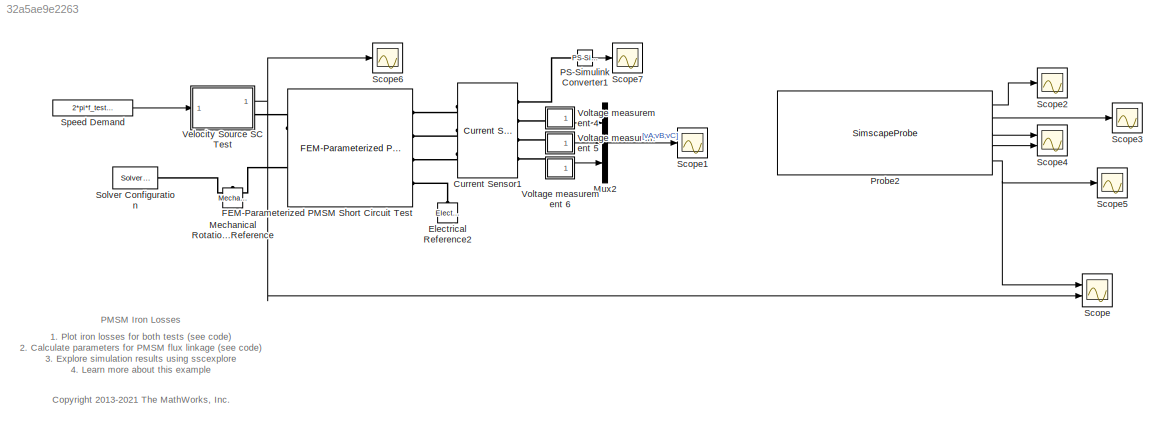
MODEL slx_32a5ae9e2263
KIND model
CONFIG AbsTol = auto
CONFIG EnableMultiTasking = on
CONFIG FixedStep = Ts
CONFIG InitFcn = f_test = 140;\n\n
CONFIG MaxStep = auto
CONFIG MinStep = auto
CONFIG PostLoadFcn = % Create the PMSM data\nee_motor_pmsm_drive_params\n\n\n\n\n\n
CONFIG RelTol = 1e-3
CONFIG SampleTimeConstraint = Unconstrained
CONFIG SolverName = FixedStepAuto
CONFIG StartTime = 0.0
CONFIG StopFcn = ee_addSimlogTimeStamp(bdroot)
CONFIG StopTime = tsim
BLOCK [Reference] Current Sensor1  REF=ee_lib/Sensors &
Transducers/Current Sensor
(Three-Phase)
  Ports = [0, 0, 0, 0, 0, 3, 4]
  SourceBlock = ee_lib/Sensors &\nTransducers/Current Sensor\n(Three-Phase)
  SourceProductBaseCode = PS
  SourceType = Current Sensor\n(Three-Phase)
BLOCK [Reference] Electrical Reference2  REF=fl_lib/Electrical/Electrical Elements/Electrical Reference
  NameLocation = right
  Ports = [0, 0, 0, 0, 0, 1]
  SourceBlock = fl_lib/Electrical/Electrical Elements/Electrical Reference
  SourceProductBaseCode = SS
  SourceType = Electrical Reference
BLOCK [Reference] FEM-Parameterized PMSM Short Circuit Test  REF=ee_lib/Electromechanical/Permanent Magnet/FEM-Parameterized
PMSM
  AttributesFormatString = Open Circuit Losses: %<losses_oc> %<losses_oc_unit>        \nShort Circuit Losses: %<losses_sc> %<losses_sc_unit>
  Ports = [0, 0, 0, 0, 0, 4, 2]
  SourceBlock = ee_lib/Electromechanical/Permanent Magnet/FEM-Parameterized\nPMSM
  SourceProductBaseCode = PS
  SourceType = FEM-Parameterized\nPMSM
BLOCK [Reference] Mechanical Rotational Reference  REF=fl_lib/Mechanical/Rotational Elements/Mechanical
Rotational Reference
  NameLocation = right
  Ports = [0, 0, 0, 0, 0, 1]
  SourceBlock = fl_lib/Mechanical/Rotational Elements/Mechanical\nRotational Reference
  SourceProductBaseCode = SS
  SourceType = Mechanical\nRotational Reference
BLOCK [Mux] Mux2
  DisplayOption = bar
  Inputs = 3
  Ports = [3, 1]
BLOCK [Reference] PS-Simulink Converter1  REF=nesl_utility/PS-Simulink
Converter
  Ports = [0, 1, 0, 0, 0, 1]
  SourceBlock = nesl_utility/PS-Simulink\nConverter
  SourceProductBaseCode = PW,SS
  SourceType = PS-Simulink\nConverter
BLOCK [SimscapeProbe] Probe2
  BoundBlock = 641
  Ports = [0, 5]
  Variables = {angular_position, angular_velocity, i_d, i_q, torque}
BLOCK [Scope] Scope
  Floating = off
  NumInputPorts = 2
  Ports = [2]
  ScopeSpecificationString = Simulink.scopes.TimeScopeBlockCfg('CurrentConfiguration', extmgr.ConfigurationSet(extmgr.Configuration('Core','General UI',true),extmgr.Configuration('Core','Source UI',true),extmgr.Configuration('Sources','WiredSimulink',true,'DataLoggingVariableName','ScopeData1'),extmgr.Configuration('Visuals','Time Domain',true,'SerializedDisplays',{struct('MinYLimReal','5.10762','MaxYLimReal','5.11744','YLabe...<+1841ch>
BLOCK [Scope] Scope1
  Floating = off
  NumInputPorts = 1
  Ports = [1]
  ScopeSpecificationString = Simulink.scopes.TimeScopeBlockCfg('CurrentConfiguration', extmgr.ConfigurationSet(extmgr.Configuration('Core','General UI',true),extmgr.Configuration('Core','Source UI',true),extmgr.Configuration('Sources','WiredSimulink',true,'DataLoggingVariableName','phase_voltages','DataLogging',true,'DataLoggingSaveFormat','StructureWithTime'),extmgr.Configuration('Visuals','Time Domain',true,'SerializedDispl...<+1978ch>
BLOCK [Scope] Scope2
  Floating = off
  NumInputPorts = 1
  Ports = [1]
  ScopeSpecificationString = Simulink.scopes.TimeScopeBlockCfg('CurrentConfiguration', extmgr.ConfigurationSet(extmgr.Configuration('Core','General UI',true),extmgr.Configuration('Core','Source UI',true),extmgr.Configuration('Sources','WiredSimulink',true,'DataLoggingVariableName','ang_position','DataLogging',true,'DataLoggingSaveFormat','StructureWithTime'),extmgr.Configuration('Visuals','Time Domain',true,'SerializedDisplay...<+1958ch>
BLOCK [Scope] Scope3
  Floating = off
  NumInputPorts = 1
  Ports = [1]
  ScopeSpecificationString = Simulink.scopes.TimeScopeBlockCfg('CurrentConfiguration', extmgr.ConfigurationSet(extmgr.Configuration('Core','General UI',true),extmgr.Configuration('Core','Source UI',true),extmgr.Configuration('Sources','WiredSimulink',true,'DataLoggingVariableName','ang_speed','DataLogging',true,'DataLoggingSaveFormat','StructureWithTime'),extmgr.Configuration('Visuals','Time Domain',true,'SerializedDisplays',...<+1610ch>
BLOCK [Scope] Scope4
  Floating = off
  NumInputPorts = 2
  Ports = [2]
  ScopeSpecificationString = Simulink.scopes.TimeScopeBlockCfg('CurrentConfiguration', extmgr.ConfigurationSet(extmgr.Configuration('Core','General UI',true),extmgr.Configuration('Core','Source UI',true),extmgr.Configuration('Sources','WiredSimulink',true,'DataLoggingVariableName','dq_currents','DataLogging',true,'DataLoggingSaveFormat','StructureWithTime'),extmgr.Configuration('Visuals','Time Domain',true,'SerializedDisplays...<+2174ch>
BLOCK [Scope] Scope5
  Floating = off
  NumInputPorts = 1
  Ports = [1]
  ScopeSpecificationString = Simulink.scopes.TimeScopeBlockCfg('CurrentConfiguration', extmgr.ConfigurationSet(extmgr.Configuration('Core','General UI',true),extmgr.Configuration('Core','Source UI',true),extmgr.Configuration('Sources','WiredSimulink',true,'DataLoggingVariableName','torque','DataLogging',true,'DataLoggingSaveFormat','StructureWithTime'),extmgr.Configuration('Visuals','Time Domain',true,'SerializedDisplays',{st...<+1616ch>
BLOCK [Scope] Scope6
  Floating = off
  NumInputPorts = 1
  Ports = [1]
  ScopeSpecificationString = Simulink.scopes.TimeScopeBlockCfg('CurrentConfiguration', extmgr.ConfigurationSet(extmgr.Configuration('Core','General UI',true),extmgr.Configuration('Core','Source UI',true),extmgr.Configuration('Sources','WiredSimulink',true,'DataLoggingVariableName','torque_sensor','DataLogging',true,'DataLoggingSaveFormat','StructureWithTime'),extmgr.Configuration('Visuals','Time Domain',true,'SerializedDispla...<+1614ch>
BLOCK [Scope] Scope7
  Floating = off
  NumInputPorts = 1
  Ports = [1]
  ScopeSpecificationString = Simulink.scopes.TimeScopeBlockCfg('CurrentConfiguration', extmgr.ConfigurationSet(extmgr.Configuration('Core','General UI',true),extmgr.Configuration('Core','Source UI',true),extmgr.Configuration('Sources','WiredSimulink',true,'DataLoggingVariableName','phase_currents','DataLogging',true,'DataLoggingSaveFormat','StructureWithTime'),extmgr.Configuration('Visuals','Time Domain',true,'SerializedDispl...<+2006ch>
BLOCK [Reference] Solver Configuration  REF=nesl_utility/Solver
Configuration
  Ports = [0, 0, 0, 0, 0, 0, 1]
  SourceBlock = nesl_utility/Solver\nConfiguration
  SourceProductBaseCode = PW,SS
  SourceType = Solver\nConfiguration
BLOCK [Constant] Speed Demand
  NameLocation = top
  Value = 2*pi*f_test/N
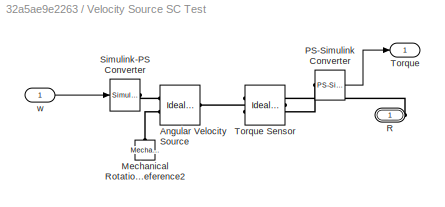
BLOCK [SubSystem] Velocity Source SC Test
  Ports = [1, 1, 0, 0, 0, 0, 1]
  RequestExecContextInheritance = off
BLOCK [Reference] Velocity Source SC Test/Angular Velocity Source  REF=fl_lib/Mechanical/Mechanical Sources/Ideal Angular
Velocity Source
  Ports = [0, 0, 0, 0, 0, 1, 2]
  SourceBlock = fl_lib/Mechanical/Mechanical Sources/Ideal Angular\nVelocity Source
  SourceProductBaseCode = SS
  SourceType = Ideal Angular\nVelocity Source
BLOCK [Reference] Velocity Source SC Test/Mechanical Rotational Reference2  REF=fl_lib/Mechanical/Rotational Elements/Mechanical
Rotational Reference
  NameLocation = right
  Ports = [0, 0, 0, 0, 0, 1]
  SourceBlock = fl_lib/Mechanical/Rotational Elements/Mechanical\nRotational Reference
  SourceProductBaseCode = SS
  SourceType = Mechanical\nRotational Reference
BLOCK [Reference] Velocity Source SC Test/PS-Simulink Converter  REF=nesl_utility/PS-Simulink
Converter
  Ports = [0, 1, 0, 0, 0, 1]
  SourceBlock = nesl_utility/PS-Simulink\nConverter
  SourceProductBaseCode = PW,SS
  SourceType = PS-Simulink\nConverter
BLOCK [PMIOPort] Velocity Source SC Test/R
  Side = Right
BLOCK [Reference] Velocity Source SC Test/Simulink-PS Converter  REF=nesl_utility/Simulink-PS
Converter
  Ports = [1, 0, 0, 0, 0, 0, 1]
  SourceBlock = nesl_utility/Simulink-PS\nConverter
  SourceProductBaseCode = PW,SS
  SourceType = Simulink-PS\nConverter
BLOCK [Outport] Velocity Source SC Test/Torque
BLOCK [Reference] Velocity Source SC Test/Torque Sensor  REF=fl_lib/Mechanical/Mechanical Sensors/Ideal Torque Sensor
  Ports = [0, 0, 0, 0, 0, 1, 2]
  SourceBlock = fl_lib/Mechanical/Mechanical Sensors/Ideal Torque Sensor
  SourceProductBaseCode = SS
  SourceType = Ideal Torque Sensor
BLOCK [Inport] Velocity Source SC Test/w
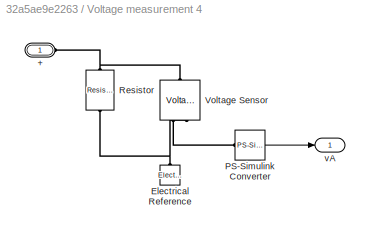
BLOCK [SubSystem] Voltage measurement 4
  NameLocation = top
  Ports = [0, 1, 0, 0, 0, 1]
  RequestExecContextInheritance = off
BLOCK [PMIOPort] Voltage measurement 4/+
  Side = Left
BLOCK [Reference] Voltage measurement 4/Electrical Reference  REF=fl_lib/Electrical/Electrical Elements/Electrical Reference
  NameLocation = right
  Ports = [0, 0, 0, 0, 0, 1]
  SourceBlock = fl_lib/Electrical/Electrical Elements/Electrical Reference
  SourceProductBaseCode = SS
  SourceType = Electrical Reference
BLOCK [Reference] Voltage measurement 4/PS-Simulink Converter  REF=nesl_utility/PS-Simulink
Converter
  Ports = [0, 1, 0, 0, 0, 1]
  SourceBlock = nesl_utility/PS-Simulink\nConverter
  SourceProductBaseCode = PW,SS
  SourceType = PS-Simulink\nConverter
BLOCK [Reference] Voltage measurement 4/Resistor  REF=fl_lib/Electrical/Electrical Elements/Resistor
  NameLocation = left
  Ports = [0, 0, 0, 0, 0, 1, 1]
  SourceBlock = fl_lib/Electrical/Electrical Elements/Resistor
  SourceProductBaseCode = SS
  SourceType = Resistor
BLOCK [Reference] Voltage measurement 4/Voltage Sensor  REF=fl_lib/Electrical/Electrical Sensors/Voltage Sensor
  NameLocation = left
  Ports = [0, 0, 0, 0, 0, 1, 2]
  SourceBlock = fl_lib/Electrical/Electrical Sensors/Voltage Sensor
  SourceProductBaseCode = SS
  SourceType = Voltage Sensor
BLOCK [Outport] Voltage measurement 4/vA
  VectorParamsAs1DForOutWhenUnconnected = off
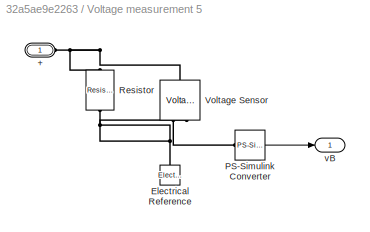
BLOCK [SubSystem] Voltage measurement 5
  NameLocation = top
  Ports = [0, 1, 0, 0, 0, 1]
  RequestExecContextInheritance = off
BLOCK [PMIOPort] Voltage measurement 5/+
  Side = Left
BLOCK [Reference] Voltage measurement 5/Electrical Reference  REF=fl_lib/Electrical/Electrical Elements/Electrical Reference
  NameLocation = right
  Ports = [0, 0, 0, 0, 0, 1]
  SourceBlock = fl_lib/Electrical/Electrical Elements/Electrical Reference
  SourceProductBaseCode = SS
  SourceType = Electrical Reference
BLOCK [Reference] Voltage measurement 5/PS-Simulink Converter  REF=nesl_utility/PS-Simulink
Converter
  Ports = [0, 1, 0, 0, 0, 1]
  SourceBlock = nesl_utility/PS-Simulink\nConverter
  SourceProductBaseCode = PW,SS
  SourceType = PS-Simulink\nConverter
BLOCK [Reference] Voltage measurement 5/Resistor  REF=fl_lib/Electrical/Electrical Elements/Resistor
  NameLocation = left
  Ports = [0, 0, 0, 0, 0, 1, 1]
  SourceBlock = fl_lib/Electrical/Electrical Elements/Resistor
  SourceProductBaseCode = SS
  SourceType = Resistor
BLOCK [Reference] Voltage measurement 5/Voltage Sensor  REF=fl_lib/Electrical/Electrical Sensors/Voltage Sensor
  NameLocation = left
  Ports = [0, 0, 0, 0, 0, 1, 2]
  SourceBlock = fl_lib/Electrical/Electrical Sensors/Voltage Sensor
  SourceProductBaseCode = SS
  SourceType = Voltage Sensor
BLOCK [Outport] Voltage measurement 5/vB
  VectorParamsAs1DForOutWhenUnconnected = off
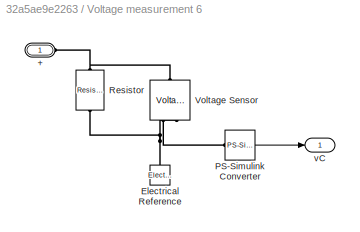
BLOCK [SubSystem] Voltage measurement 6
  NameLocation = top
  Ports = [0, 1, 0, 0, 0, 1]
  RequestExecContextInheritance = off
BLOCK [PMIOPort] Voltage measurement 6/+
  Side = Left
BLOCK [Reference] Voltage measurement 6/Electrical Reference  REF=fl_lib/Electrical/Electrical Elements/Electrical Reference
  NameLocation = right
  Ports = [0, 0, 0, 0, 0, 1]
  SourceBlock = fl_lib/Electrical/Electrical Elements/Electrical Reference
  SourceProductBaseCode = SS
  SourceType = Electrical Reference
BLOCK [Reference] Voltage measurement 6/PS-Simulink Converter  REF=nesl_utility/PS-Simulink
Converter
  Ports = [0, 1, 0, 0, 0, 1]
  SourceBlock = nesl_utility/PS-Simulink\nConverter
  SourceProductBaseCode = PW,SS
  SourceType = PS-Simulink\nConverter
BLOCK [Reference] Voltage measurement 6/Resistor  REF=fl_lib/Electrical/Electrical Elements/Resistor
  NameLocation = left
  Ports = [0, 0, 0, 0, 0, 1, 1]
  SourceBlock = fl_lib/Electrical/Electrical Elements/Resistor
  SourceProductBaseCode = SS
  SourceType = Resistor
BLOCK [Reference] Voltage measurement 6/Voltage Sensor  REF=fl_lib/Electrical/Electrical Sensors/Voltage Sensor
  NameLocation = left
  Ports = [0, 0, 0, 0, 0, 1, 2]
  SourceBlock = fl_lib/Electrical/Electrical Sensors/Voltage Sensor
  SourceProductBaseCode = SS
  SourceType = Voltage Sensor
BLOCK [Outport] Voltage measurement 6/vC
  VectorParamsAs1DForOutWhenUnconnected = off
ANNOTATION (root): 1. Plot iron losses for both tests ( see code ) 2. Calculate parameters for PMSM flux linkage ( see code ) 3. Explore simulation results using sscexplore 4. Learn more about this example
ANNOTATION (root): <copyright redacted>
ANNOTATION (root): PMSM Iron Losses
LINE Mux2:1 -> Scope1:1
LINE PS-Simulink Converter1:1 -> Scope7:1
LINE Probe2:1 -> Scope2:1
LINE Probe2:2 -> Scope3:1
LINE Probe2:3 -> Scope4:1
LINE Probe2:4 -> Scope4:2
NET Probe2:5 -> Scope5:1, Scope:1
LINE Speed Demand:1 -> Velocity Source SC Test:1
LINE Velocity Source SC Test/PS-Simulink Converter:1 -> Velocity Source SC Test/Torque:1
LINE Velocity Source SC Test/w:1 -> Velocity Source SC Test/Simulink-PS Converter:1
NET Velocity Source SC Test:1 -> Scope6:1, Scope:2
LINE Voltage measurement 4/PS-Simulink Converter:1 -> Voltage measurement 4/vA:1
LINE Voltage measurement 4:1 -> Mux2:1
LINE Voltage measurement 5/PS-Simulink Converter:1 -> Voltage measurement 5/vB:1
LINE Voltage measurement 5:1 -> Mux2:2
LINE Voltage measurement 6/PS-Simulink Converter:1 -> Voltage measurement 6/vC:1
LINE Voltage measurement 6:1 -> Mux2:3
PLINE Current Sensor1:LConn1 -- FEM-Parameterized PMSM Short Circuit Test:LConn1
PLINE Current Sensor1:LConn2 -- FEM-Parameterized PMSM Short Circuit Test:LConn2
PLINE Current Sensor1:LConn3 -- FEM-Parameterized PMSM Short Circuit Test:LConn3
PLINE Current Sensor1:RConn1 -- PS-Simulink Converter1:LConn1
PLINE Current Sensor1:RConn2 -- Voltage measurement 4:LConn1
PLINE Current Sensor1:RConn3 -- Voltage measurement 5:LConn1
PLINE Current Sensor1:RConn4 -- Voltage measurement 6:LConn1
PLINE Electrical Reference2:LConn1 -- FEM-Parameterized PMSM Short Circuit Test:LConn4
PLINE FEM-Parameterized PMSM Short Circuit Test:RConn1 -- Velocity Source SC Test:RConn1
PNET net1: FEM-Parameterized PMSM Short Circuit Test:RConn2 -- Mechanical Rotational Reference:LConn1 -- Solver Configuration:RConn1
PLINE Velocity Source SC Test/Angular Velocity Source:LConn1 -- Velocity Source SC Test/Torque Sensor:LConn1
PLINE Velocity Source SC Test/Angular Velocity Source:RConn1 -- Velocity Source SC Test/Simulink-PS Converter:RConn1
PLINE Velocity Source SC Test/Angular Velocity Source:RConn2 -- Velocity Source SC Test/Mechanical Rotational Reference2:LConn1
PLINE Velocity Source SC Test/PS-Simulink Converter:LConn1 -- Velocity Source SC Test/Torque Sensor:RConn2
PLINE Velocity Source SC Test/R:RConn1 -- Velocity Source SC Test/Torque Sensor:RConn1
PNET net2: Voltage measurement 4/+:RConn1 -- Voltage measurement 4/Resistor:LConn1 -- Voltage measurement 4/Voltage Sensor:LConn1
PNET net3: Voltage measurement 4/Electrical Reference:LConn1 -- Voltage measurement 4/Resistor:RConn1 -- Voltage measurement 4/Voltage Sensor:RConn2
PLINE Voltage measurement 4/PS-Simulink Converter:LConn1 -- Voltage measurement 4/Voltage Sensor:RConn1
PNET net4: Voltage measurement 5/+:RConn1 -- Voltage measurement 5/Resistor:LConn1 -- Voltage measurement 5/Voltage Sensor:LConn1
PNET net5: Voltage measurement 5/Electrical Reference:LConn1 -- Voltage measurement 5/Resistor:RConn1 -- Voltage measurement 5/Voltage Sensor:RConn2
PLINE Voltage measurement 5/PS-Simulink Converter:LConn1 -- Voltage measurement 5/Voltage Sensor:RConn1
PNET net6: Voltage measurement 6/+:RConn1 -- Voltage measurement 6/Resistor:LConn1 -- Voltage measurement 6/Voltage Sensor:LConn1
PNET net7: Voltage measurement 6/Electrical Reference:LConn1 -- Voltage measurement 6/Resistor:RConn1 -- Voltage measurement 6/Voltage Sensor:RConn2
PLINE Voltage measurement 6/PS-Simulink Converter:LConn1 -- Voltage measurement 6/Voltage Sensor:RConn1
note: NET lines group one-source signal fan-out (src -> all destinations, sorted); 1:1 wires keep LINE; PNET lines group multi-terminal physical nets as a canonical sorted terminal list (undirected conserving connections); 2-terminal nets keep the pairwise PLINE form
